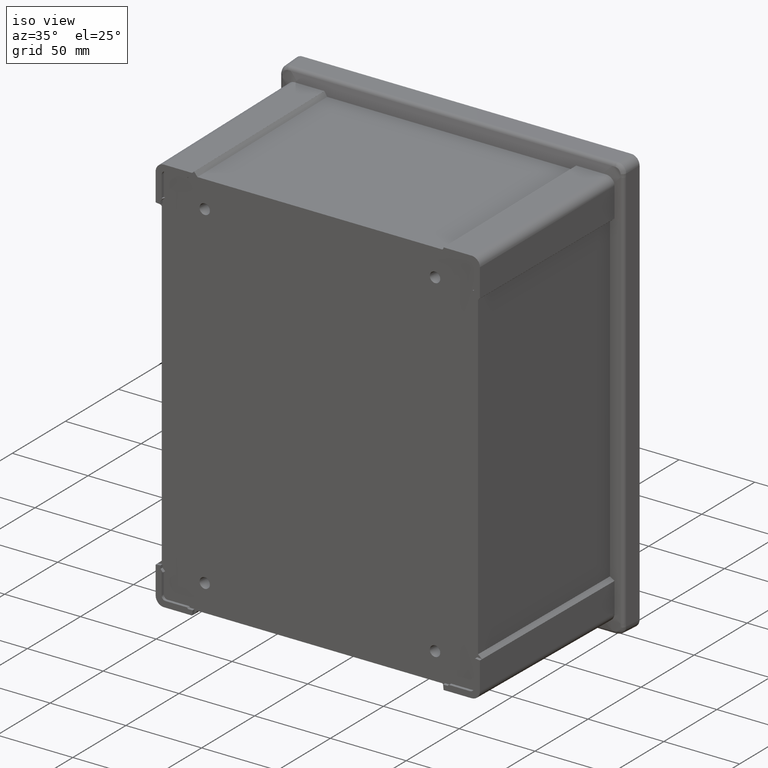
[diagram: clean part render]
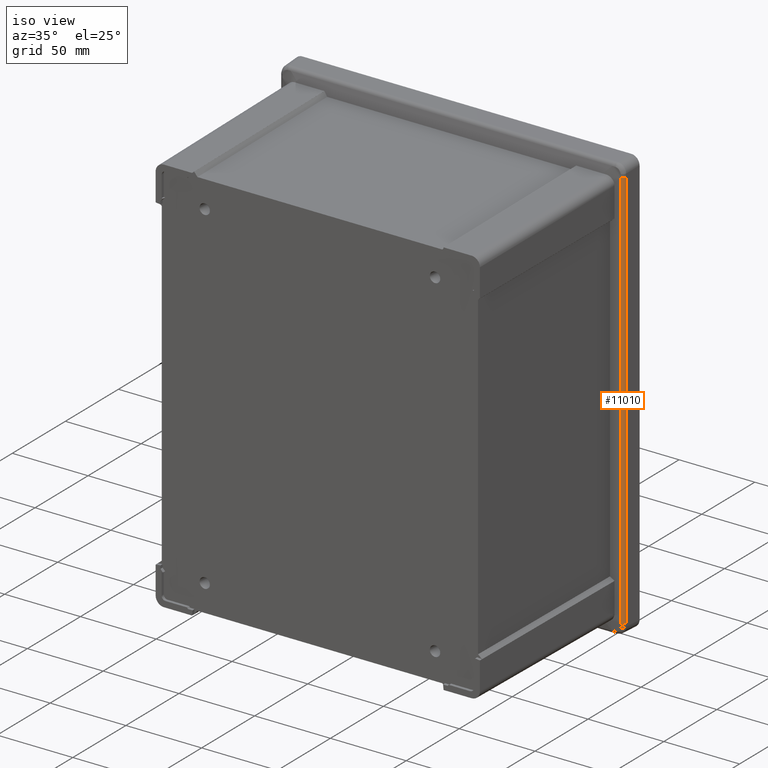
[diagram: same view with one face highlighted and labeled with its STEP entity id]
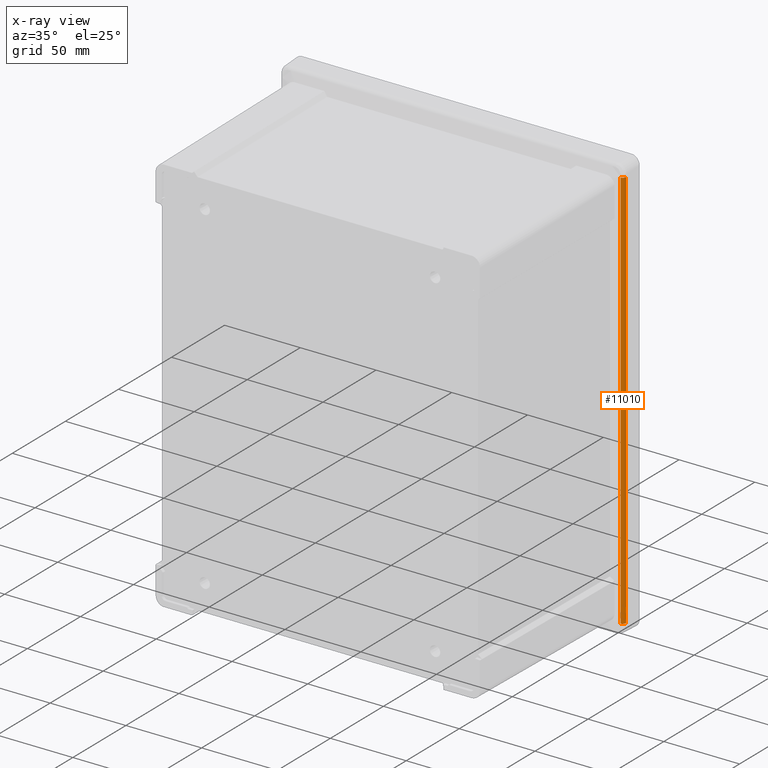
[diagram: x-ray of the same camera — body ghosted, the highlighted face saturated]
A machine part, iso view. The second image highlights one B-rep face of the part: STEP entity #11010.
The next image is the same camera in x-ray: the body ghosted, the highlighted face saturated — about 0% of this face is hidden behind the body in this view.
In plain terms, the highlighted cylindrical surface (edge-blend (fillet) strip) has radius 2.5 mm, axis along (-0, 0, 1).
Its self-contained STEP definition (entity closure, byte-faithful):
#239 = CARTESIAN_POINT ( 'NONE',  ( 111.6005775744771100, -14.40609603904655100, 133.0909177678065000 ) ) ;
#532 = CARTESIAN_POINT ( 'NONE',  ( 113.5792754149805000, -12.04797577896829500, -133.0909177678065600 ) ) ;
#662 = ORIENTED_EDGE ( 'NONE', *, *, #7844, .T. ) ;
#825 = LINE ( 'NONE', #916, #5660 ) ;
#832 = CARTESIAN_POINT ( 'NONE',  ( 111.6005775744771600, -14.40609603904655800, -133.0909177678065600 ) ) ;
#916 = CARTESIAN_POINT ( 'NONE',  ( 111.6005775744771600, -14.40609603904656000, -140.5111092271155000 ) ) ;
#1063 = CARTESIAN_POINT ( 'NONE',  ( 111.0807983474327600, -11.96072703721204200, -140.5111092271155000 ) ) ;
#1223 = AXIS2_PLACEMENT_3D ( 'NONE', #3440, #4611, #4751 ) ;
#1657 = EDGE_CURVE ( 'NONE', #18790, #15107, #12502, .T. ) ;
#1685 = DIRECTION ( 'NONE',  ( 1.000000000000000000, 0.0000000000000000000, 0.0000000000000000000 ) ) ;
#1733 = EDGE_CURVE ( 'NONE', #13774, #18790, #825, .T. ) ;
#1969 = CARTESIAN_POINT ( 'NONE',  ( 113.5792754149804600, -12.04797577896829500, 133.0909177678065000 ) ) ;
#2766 = VECTOR ( 'NONE', #17583, 1000.000000000000000 ) ;
#3115 = DIRECTION ( 'NONE',  ( 0.0000000000000000000, 0.0000000000000000000, 1.000000000000000000 ) ) ;
#3440 = CARTESIAN_POINT ( 'NONE',  ( 111.0807983474327800, -11.96072703721204200, -133.0909177678065600 ) ) ;
#3910 = EDGE_LOOP ( 'NONE', ( #662, #9017, #10864, #13218 ) ) ;
#3994 = AXIS2_PLACEMENT_3D ( 'NONE', #1063, #6758, #14161 ) ;
#4611 = DIRECTION ( 'NONE',  ( 0.0000000000000000000, 0.0000000000000000000, 1.000000000000000000 ) ) ;
#4751 = DIRECTION ( 'NONE',  ( 1.000000000000000000, 0.0000000000000000000, 0.0000000000000000000 ) ) ;
#5660 = VECTOR ( 'NONE', #15377, 1000.000000000000000 ) ;
#6758 = DIRECTION ( 'NONE',  ( -1.476321991264318700E-016, 1.100027945693336800E-019, 1.000000000000000000 ) ) ;
#6950 = EDGE_CURVE ( 'NONE', #15107, #7793, #10550, .T. ) ;
#7167 = AXIS2_PLACEMENT_3D ( 'NONE', #12062, #3115, #1685 ) ;
#7320 = CARTESIAN_POINT ( 'NONE',  ( 113.5792754149805000, -12.04797577896829500, -140.9999999999999700 ) ) ;
#7793 = VERTEX_POINT ( 'NONE', #532 ) ;
#7844 = EDGE_CURVE ( 'NONE', #13774, #7793, #14889, .T. ) ;
#9017 = ORIENTED_EDGE ( 'NONE', *, *, #6950, .F. ) ;
#9864 = FACE_OUTER_BOUND ( 'NONE', #3910, .T. ) ;
#10550 = LINE ( 'NONE', #7320, #2766 ) ;
#10864 = ORIENTED_EDGE ( 'NONE', *, *, #1657, .F. ) ;
#11010 = ADVANCED_FACE ( 'NONE', ( #9864 ), #12784, .T. ) ;
#12062 = CARTESIAN_POINT ( 'NONE',  ( 111.0807983474327200, -11.96072703721204400, 133.0909177678065000 ) ) ;
#12502 = CIRCLE ( 'NONE', #7167, 2.500000000000002200 ) ;
#12784 = CYLINDRICAL_SURFACE ( 'NONE', #3994, 2.500000000000002200 ) ;
#13218 = ORIENTED_EDGE ( 'NONE', *, *, #1733, .F. ) ;
#13774 = VERTEX_POINT ( 'NONE', #832 ) ;
#14161 = DIRECTION ( 'NONE',  ( 1.000000000000000000, 0.0000000000000000000, 0.0000000000000000000 ) ) ;
#14889 = CIRCLE ( 'NONE', #1223, 2.500000000000002200 ) ;
#15107 = VERTEX_POINT ( 'NONE', #1969 ) ;
#15377 = DIRECTION ( 'NONE',  ( -1.476321991264318900E-016, 1.100027945693361300E-019, 1.000000000000000000 ) ) ;
#17583 = DIRECTION ( 'NONE',  ( 1.476321991264318700E-016, -1.100027945693337300E-019, -1.000000000000000000 ) ) ;
#18790 = VERTEX_POINT ( 'NONE', #239 ) ;